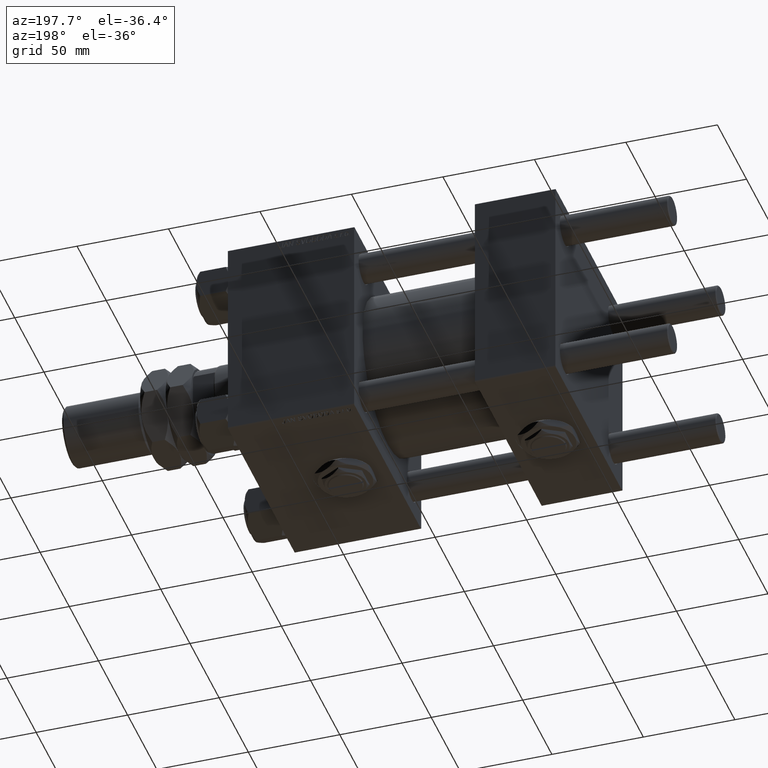
[diagram: clean part render]
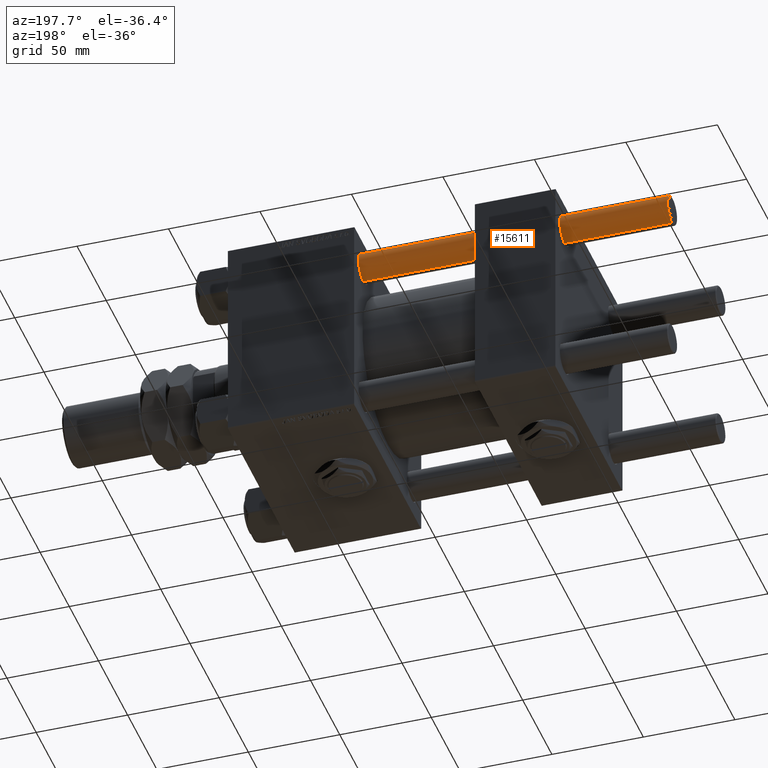
[diagram: same view with one face highlighted and labeled with its STEP entity id]
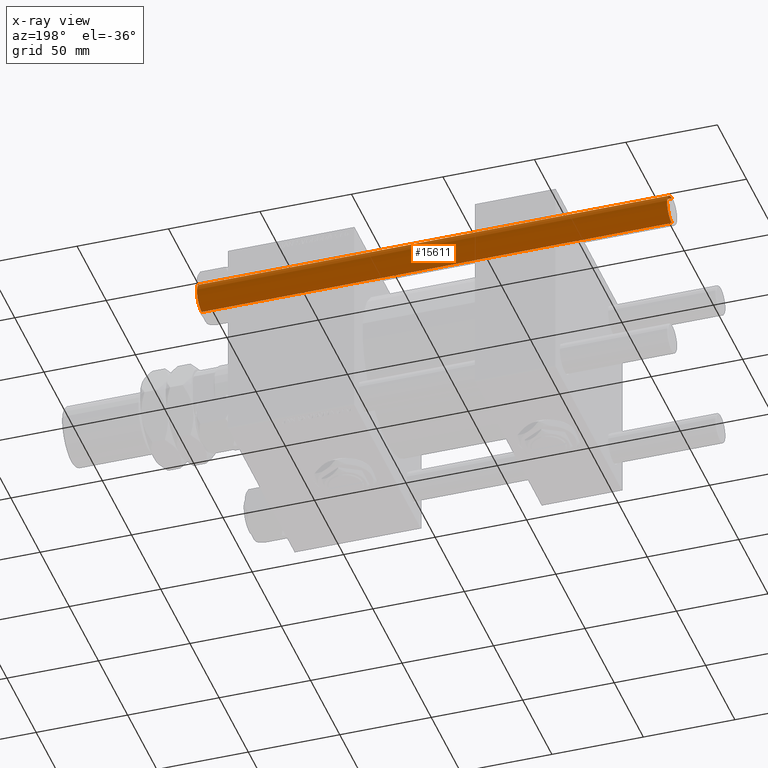
[diagram: x-ray of the same camera — body ghosted, the highlighted face saturated]
A machine part, auxiliary view. The second image highlights one B-rep face of the part: STEP entity #15611.
The next image is the same camera in x-ray: the body ghosted, the highlighted face saturated — about 0% of this face is hidden behind the body in this view.
In plain terms, the highlighted cylindrical surface (edge-blend (fillet) strip) has radius 8 mm, axis along (-1, -0, -0).
Its self-contained STEP definition (entity closure, byte-faithful):
#979 = CIRCLE ( 'NONE', #24517, 8.000000000000000000 ) ;
#5064 = CARTESIAN_POINT ( 'NONE',  ( 0.000000000000000000, 0.000000000000000000, 257.4999999999999432 ) ) ;
#6227 = CYLINDRICAL_SURFACE ( 'NONE', #28596, 8.000000000000000000 ) ;
#9268 = ORIENTED_EDGE ( 'NONE', *, *, #22595, .T. ) ;
#11290 = VERTEX_POINT ( 'NONE', #33152 ) ;
#13632 = CARTESIAN_POINT ( 'NONE',  ( -8.000000000000000000, 0.000000000000000000, 0.4999999999999449329 ) ) ;
#13721 = EDGE_CURVE ( 'NONE', #11290, #18164, #22620, .T. ) ;
#14694 = FACE_OUTER_BOUND ( 'NONE', #47452, .T. ) ;
#14995 = AXIS2_PLACEMENT_3D ( 'NONE', #5064, #29647, #42169 ) ;
#15611 = ADVANCED_FACE ( 'NONE', ( #14694 ), #6227, .T. ) ;
#16303 = VECTOR ( 'NONE', #25631, 1000.000000000000000 ) ;
#18164 = VERTEX_POINT ( 'NONE', #13632 ) ;
#19066 = DIRECTION ( 'NONE',  ( -0.000000000000000000, -0.000000000000000000, -1.000000000000000000 ) ) ;
#22595 = EDGE_CURVE ( 'NONE', #29036, #18164, #979, .T. ) ;
#22620 = LINE ( 'NONE', #34896, #16303 ) ;
#22925 = VECTOR ( 'NONE', #29941, 1000.000000000000000 ) ;
#24492 = EDGE_CURVE ( 'NONE', #11290, #31038, #31584, .T. ) ;
#24517 = AXIS2_PLACEMENT_3D ( 'NONE', #33181, #36730, #48968 ) ;
#24655 = ORIENTED_EDGE ( 'NONE', *, *, #24492, .T. ) ;
#25631 = DIRECTION ( 'NONE',  ( -0.000000000000000000, -0.000000000000000000, -1.000000000000000000 ) ) ;
#27253 = DIRECTION ( 'NONE',  ( -1.000000000000000000, 0.000000000000000000, 0.000000000000000000 ) ) ;
#28596 = AXIS2_PLACEMENT_3D ( 'NONE', #31359, #19066, #27253 ) ;
#29036 = VERTEX_POINT ( 'NONE', #34199 ) ;
#29647 = DIRECTION ( 'NONE',  ( 0.000000000000000000, 0.000000000000000000, -1.000000000000000000 ) ) ;
#29676 = LINE ( 'NONE', #46282, #22925 ) ;
#29941 = DIRECTION ( 'NONE',  ( -0.000000000000000000, -0.000000000000000000, -1.000000000000000000 ) ) ;
#31038 = VERTEX_POINT ( 'NONE', #32631 ) ;
#31359 = CARTESIAN_POINT ( 'NONE',  ( 0.000000000000000000, 0.000000000000000000, 258.0000000000000000 ) ) ;
#31584 = CIRCLE ( 'NONE', #14995, 8.000000000000000000 ) ;
#32631 = CARTESIAN_POINT ( 'NONE',  ( 8.000000000000000000, 9.797174393178825657E-16, 257.4999999999999432 ) ) ;
#33152 = CARTESIAN_POINT ( 'NONE',  ( -8.000000000000000000, 0.000000000000000000, 257.4999999999999432 ) ) ;
#33181 = CARTESIAN_POINT ( 'NONE',  ( 0.000000000000000000, 0.000000000000000000, 0.4999999999999449329 ) ) ;
#34199 = CARTESIAN_POINT ( 'NONE',  ( 8.000000000000000000, 9.797174393178825657E-16, 0.4999999999999449329 ) ) ;
#34896 = CARTESIAN_POINT ( 'NONE',  ( -8.000000000000000000, 0.000000000000000000, 258.0000000000000000 ) ) ;
#36730 = DIRECTION ( 'NONE',  ( -0.000000000000000000, -0.000000000000000000, 1.000000000000000000 ) ) ;
#42169 = DIRECTION ( 'NONE',  ( 1.000000000000000000, 0.000000000000000000, 0.000000000000000000 ) ) ;
#46282 = CARTESIAN_POINT ( 'NONE',  ( 8.000000000000000000, 9.797174393178825657E-16, 258.0000000000000000 ) ) ;
#46879 = ORIENTED_EDGE ( 'NONE', *, *, #13721, .F. ) ;
#47452 = EDGE_LOOP ( 'NONE', ( #24655, #53598, #9268, #46879 ) ) ;
#48968 = DIRECTION ( 'NONE',  ( 1.000000000000000000, 0.000000000000000000, 0.000000000000000000 ) ) ;
#52202 = EDGE_CURVE ( 'NONE', #31038, #29036, #29676, .T. ) ;
#53598 = ORIENTED_EDGE ( 'NONE', *, *, #52202, .T. ) ;